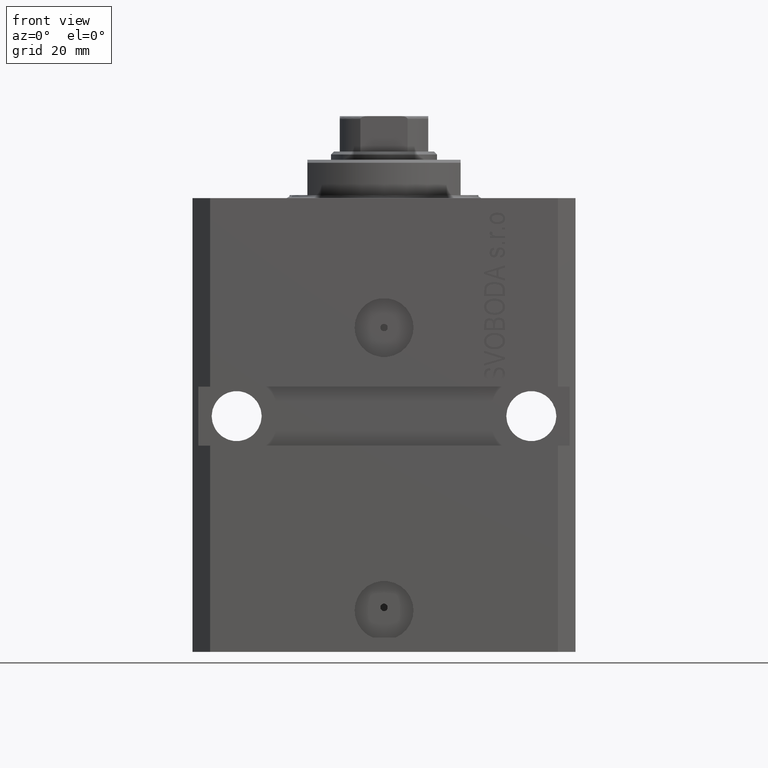
[diagram: clean part render]
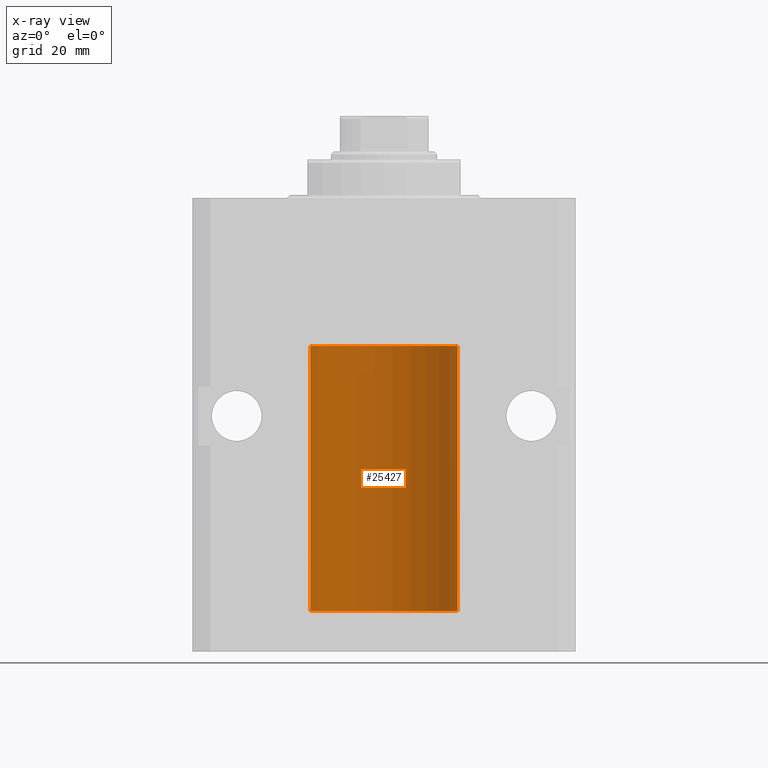
[diagram: x-ray — body ghosted, one internal face saturated and labeled with its STEP entity id]
A machine part, front view, then the same camera in x-ray: the body is ghosted and one INTERNAL B-rep face — a face not visible from any outside direction — is saturated and labeled: STEP entity #25427.
In plain terms, the highlighted cylindrical surface (partial cylindrical patch) has radius 12.5 mm, axis along (0, 0, 1).
Its self-contained STEP definition (entity closure, byte-faithful):
#192 = CARTESIAN_POINT ( 'NONE',  ( -12.49625855304193855, 0.3150454781038045660, -64.45402800297485157 ) ) ;
#491 = CARTESIAN_POINT ( 'NONE',  ( 12.48436522214846711, 0.6250000000078848039, -64.99999999999923261 ) ) ;
#714 = ORIENTED_EDGE ( 'NONE', *, *, #44626, .T. ) ;
#786 = ORIENTED_EDGE ( 'NONE', *, *, #43418, .F. ) ;
#897 = CARTESIAN_POINT ( 'NONE',  ( -12.48810268015257741, 0.5573155909661291485, -64.67347410093869087 ) ) ;
#3120 = VERTEX_POINT ( 'NONE', #23965 ) ;
#3517 = AXIS2_PLACEMENT_3D ( 'NONE', #19935, #34881, #4987 ) ;
#4703 = VERTEX_POINT ( 'NONE', #14199 ) ;
#4715 = ORIENTED_EDGE ( 'NONE', *, *, #46661, .F. ) ;
#4987 = DIRECTION ( 'NONE',  ( 1.000000000000000000, 0.000000000000000000, 0.000000000000000000 ) ) ;
#5222 = CARTESIAN_POINT ( 'NONE',  ( -12.50000000000000000, 1.530808498934191127E-15, -70.09999999999999432 ) ) ;
#5481 = CARTESIAN_POINT ( 'NONE',  ( 12.49625698805481022, 0.3151108292486944906, -65.54593695688173227 ) ) ;
#5708 = CARTESIAN_POINT ( 'NONE',  ( 12.48436522214885969, 0.6250000000001505462, -65.16312747540307271 ) ) ;
#5901 = DIRECTION ( 'NONE',  ( 0.000000000000000000, 0.000000000000000000, 1.000000000000000000 ) ) ;
#7160 = ORIENTED_EDGE ( 'NONE', *, *, #10781, .T. ) ;
#7492 = CARTESIAN_POINT ( 'NONE',  ( 12.49999999999999822, 0.1631389616600901760, -64.37500000000022737 ) ) ;
#7782 = VERTEX_POINT ( 'NONE', #39662 ) ;
#8198 = CARTESIAN_POINT ( 'NONE',  ( 12.48436522214888100, 0.6249999999996834754, -64.91847339462351840 ) ) ;
#8671 = DIRECTION ( 'NONE',  ( -0.000000000000000000, -0.000000000000000000, 1.000000000000000000 ) ) ;
#8876 = ORIENTED_EDGE ( 'NONE', *, *, #42026, .F. ) ;
#9090 = CARTESIAN_POINT ( 'NONE',  ( 12.49421963472024721, 0.3844519291903572555, -65.49947303647046226 ) ) ;
#9562 = CARTESIAN_POINT ( 'NONE',  ( 12.49999999999999822, 0.08262306818362624705, -65.62500000000000000 ) ) ;
#10671 = LINE ( 'NONE', #15242, #29709 ) ;
#10693 = CARTESIAN_POINT ( 'NONE',  ( 12.50000000000000000, 0.000000000000000000, -25.10000000000000142 ) ) ;
#10781 = EDGE_CURVE ( 'NONE', #3120, #19314, #18684, .T. ) ;
#11400 = EDGE_LOOP ( 'NONE', ( #786, #8876, #32794, #714, #21228, #22086, #21867, #4715, #7160 ) ) ;
#11513 = LINE ( 'NONE', #5222, #38391 ) ;
#11623 = EDGE_CURVE ( 'NONE', #23214, #41103, #41254, .T. ) ;
#12270 = VERTEX_POINT ( 'NONE', #38282 ) ;
#13419 = CARTESIAN_POINT ( 'NONE',  ( 12.50000000000000000, -1.836039810331332019E-15, -65.62500000000000000 ) ) ;
#13598 = AXIS2_PLACEMENT_3D ( 'NONE', #14084, #5901, #24455 ) ;
#14084 = CARTESIAN_POINT ( 'NONE',  ( 0.000000000000000000, 0.000000000000000000, -70.09999999999999432 ) ) ;
#14199 = CARTESIAN_POINT ( 'NONE',  ( -12.50000000000000000, 1.530808498934191127E-15, -70.09999999999999432 ) ) ;
#14900 = CARTESIAN_POINT ( 'NONE',  ( -12.49631005746706158, 0.3253680783018496059, -65.55856740465392818 ) ) ;
#15131 = EDGE_CURVE ( 'NONE', #35323, #12270, #10671, .T. ) ;
#15242 = CARTESIAN_POINT ( 'NONE',  ( 12.50000000000000000, 0.000000000000000000, -70.09999999999999432 ) ) ;
#15346 = DIRECTION ( 'NONE',  ( -0.000000000000000000, -0.000000000000000000, 1.000000000000000000 ) ) ;
#15435 = CARTESIAN_POINT ( 'NONE',  ( -12.50000000000000000, 1.530808498934191127E-15, -70.09999999999999432 ) ) ;
#15595 = DIRECTION ( 'NONE',  ( -0.000000000000000000, -0.000000000000000000, 1.000000000000000000 ) ) ;
#15602 = CARTESIAN_POINT ( 'NONE',  ( -12.48436376893640087, 0.6250290278979918623, -65.08132082824472775 ) ) ;
#16727 = CARTESIAN_POINT ( 'NONE',  ( 12.48436522214846711, 0.6250000000078848039, -64.99999999999923261 ) ) ;
#16946 = AXIS2_PLACEMENT_3D ( 'NONE', #19187, #15346, #33661 ) ;
#18684 = B_SPLINE_CURVE_WITH_KNOTS ( 'NONE', 3,
 ( #40949, #36596, #25977, #192, #30295, #897, #41173, #15602, #44583, #21883, #25732, #14900, #25511, #44814 ),
 .UNSPECIFIED., .F., .F.,
 ( 4, 2, 2, 2, 2, 2, 4 ),
 ( 3.452213508042194616E-18, 0.0002442924852390797774, 0.0004885849704781561938, 0.0009771699409563384085, 0.001221462426195450224, 0.001465754911434562040, 0.001954339881912785671 ),
 .UNSPECIFIED. ) ;
#18950 = FACE_OUTER_BOUND ( 'NONE', #11400, .T. ) ;
#18982 = CARTESIAN_POINT ( 'NONE',  ( -12.50000000000017941, 3.883381774819353300E-13, -65.62500000000359535 ) ) ;
#19187 = CARTESIAN_POINT ( 'NONE',  ( 0.000000000000000000, 0.000000000000000000, -70.09999999999999432 ) ) ;
#19314 = VERTEX_POINT ( 'NONE', #18982 ) ;
#19935 = CARTESIAN_POINT ( 'NONE',  ( 0.000000000000000000, 0.000000000000000000, -25.10000000000000142 ) ) ;
#20397 = CARTESIAN_POINT ( 'NONE',  ( 12.49915742890631876, 0.1636982395582385896, -65.60872397847025184 ) ) ;
#21228 = ORIENTED_EDGE ( 'NONE', *, *, #33085, .T. ) ;
#21867 = ORIENTED_EDGE ( 'NONE', *, *, #11623, .T. ) ;
#21883 = CARTESIAN_POINT ( 'NONE',  ( -12.48809959379011580, 0.5462151254764967545, -65.31461370481615347 ) ) ;
#22086 = ORIENTED_EDGE ( 'NONE', *, *, #28483, .T. ) ;
#22194 = CARTESIAN_POINT ( 'NONE',  ( 12.50000000000017941, 3.868073689162038701E-13, -64.37499999999640465 ) ) ;
#23214 = VERTEX_POINT ( 'NONE', #10693 ) ;
#23965 = CARTESIAN_POINT ( 'NONE',  ( -12.50000000000000000, -1.050566418211748297E-14, -64.37500000000000000 ) ) ;
#24263 = CARTESIAN_POINT ( 'NONE',  ( 12.48436522214846711, 0.6250000000078848039, -64.99999999999923261 ) ) ;
#24455 = DIRECTION ( 'NONE',  ( 1.000000000000000000, 0.000000000000000000, 0.000000000000000000 ) ) ;
#24699 = B_SPLINE_CURVE_WITH_KNOTS ( 'NONE', 3,
 ( #491, #8198, #26044, #44409, #40542, #25572, #7492, #22194 ),
 .UNSPECIFIED., .F., .F.,
 ( 4, 2, 2, 4 ),
 ( 0.0009773924225142606621, 0.001221629287363811033, 0.001465866152213361404, 0.001954339881912461711 ),
 .UNSPECIFIED. ) ;
#25427 = ADVANCED_FACE ( 'NONE', ( #18950 ), #41387, .F. ) ;
#25511 = CARTESIAN_POINT ( 'NONE',  ( -12.49999999999999289, 0.1631761135151231223, -65.62499999999984368 ) ) ;
#25572 = CARTESIAN_POINT ( 'NONE',  ( 12.49631206032076136, 0.3252904079142934779, -64.44139700214927302 ) ) ;
#25732 = CARTESIAN_POINT ( 'NONE',  ( -12.49011732893843707, 0.5003763274120244242, -65.38348111289288056 ) ) ;
#25977 = CARTESIAN_POINT ( 'NONE',  ( -12.49915784441386890, 0.1636601911727942615, -64.39126818989430490 ) ) ;
#26044 = CARTESIAN_POINT ( 'NONE',  ( 12.48520578595314845, 0.6087855079133740466, -64.83656717509344958 ) ) ;
#26268 = LINE ( 'NONE', #15435, #41352 ) ;
#28483 = EDGE_CURVE ( 'NONE', #7782, #23214, #34272, .T. ) ;
#29709 = VECTOR ( 'NONE', #32593, 1000.000000000000000 ) ;
#30182 = CARTESIAN_POINT ( 'NONE',  ( 12.50000000000000000, 0.000000000000000000, -70.09999999999999432 ) ) ;
#30295 = CARTESIAN_POINT ( 'NONE',  ( -12.49422197749724539, 0.3843754434364305972, -64.50047099568097053 ) ) ;
#32593 = DIRECTION ( 'NONE',  ( -0.000000000000000000, -0.000000000000000000, 1.000000000000000000 ) ) ;
#32794 = ORIENTED_EDGE ( 'NONE', *, *, #15131, .T. ) ;
#33085 = EDGE_CURVE ( 'NONE', #42967, #7782, #24699, .T. ) ;
#33661 = DIRECTION ( 'NONE',  ( 1.000000000000000000, 0.000000000000000000, 0.000000000000000000 ) ) ;
#34265 = B_SPLINE_CURVE_WITH_KNOTS ( 'NONE', 3,
 ( #13419, #9562, #20397, #5481, #9090, #35120, #5708, #24263 ),
 .UNSPECIFIED., .F., .F.,
 ( 4, 2, 2, 4 ),
 ( 1.784246692340212412E-18, 0.0002443481056285665750, 0.0004886962112571313068, 0.0009773924225142606621 ),
 .UNSPECIFIED. ) ;
#34272 = LINE ( 'NONE', #30182, #40032 ) ;
#34881 = DIRECTION ( 'NONE',  ( 0.000000000000000000, 0.000000000000000000, 1.000000000000000000 ) ) ;
#35120 = CARTESIAN_POINT ( 'NONE',  ( 12.48809900631782099, 0.5573988467445673001, -65.32640147935475738 ) ) ;
#35140 = CIRCLE ( 'NONE', #13598, 12.50000000000000000 ) ;
#35323 = VERTEX_POINT ( 'NONE', #39869 ) ;
#36596 = CARTESIAN_POINT ( 'NONE',  ( -12.49999999999999645, 0.08260426088728482774, -64.37499999999998579 ) ) ;
#38282 = CARTESIAN_POINT ( 'NONE',  ( 12.50000000000000000, -1.836039810331332019E-15, -65.62500000000000000 ) ) ;
#38391 = VECTOR ( 'NONE', #15595, 1000.000000000000000 ) ;
#39662 = CARTESIAN_POINT ( 'NONE',  ( 12.50000000000017941, 3.868073689162038701E-13, -64.37499999999640465 ) ) ;
#39869 = CARTESIAN_POINT ( 'NONE',  ( 12.50000000000000000, 0.000000000000000000, -70.09999999999999432 ) ) ;
#40032 = VECTOR ( 'NONE', #41534, 1000.000000000000000 ) ;
#40542 = CARTESIAN_POINT ( 'NONE',  ( 12.49012055744648997, 0.5002956126656082914, -64.61641710202404454 ) ) ;
#40949 = CARTESIAN_POINT ( 'NONE',  ( -12.50000000000000000, -1.050566418211748297E-14, -64.37500000000000000 ) ) ;
#41103 = VERTEX_POINT ( 'NONE', #41305 ) ;
#41173 = CARTESIAN_POINT ( 'NONE',  ( -12.48436813453758454, 0.6249418250771179295, -64.83668996798921569 ) ) ;
#41254 = CIRCLE ( 'NONE', #3517, 12.50000000000000000 ) ;
#41305 = CARTESIAN_POINT ( 'NONE',  ( -12.50000000000000000, 1.530808498934191127E-15, -25.10000000000000142 ) ) ;
#41352 = VECTOR ( 'NONE', #8671, 1000.000000000000000 ) ;
#41387 = CYLINDRICAL_SURFACE ( 'NONE', #16946, 12.50000000000000000 ) ;
#41534 = DIRECTION ( 'NONE',  ( -0.000000000000000000, -0.000000000000000000, 1.000000000000000000 ) ) ;
#42026 = EDGE_CURVE ( 'NONE', #35323, #4703, #35140, .T. ) ;
#42967 = VERTEX_POINT ( 'NONE', #16727 ) ;
#43418 = EDGE_CURVE ( 'NONE', #4703, #19314, #26268, .T. ) ;
#44409 = CARTESIAN_POINT ( 'NONE',  ( 12.48810305280568222, 0.5461368461738485003, -64.68525466142676805 ) ) ;
#44583 = CARTESIAN_POINT ( 'NONE',  ( -12.48520330846398174, 0.6088355886774118320, -65.16325431852561678 ) ) ;
#44626 = EDGE_CURVE ( 'NONE', #12270, #42967, #34265, .T. ) ;
#44814 = CARTESIAN_POINT ( 'NONE',  ( -12.50000000000017941, 3.883381774819353300E-13, -65.62500000000359535 ) ) ;
#46661 = EDGE_CURVE ( 'NONE', #3120, #41103, #11513, .T. ) ;